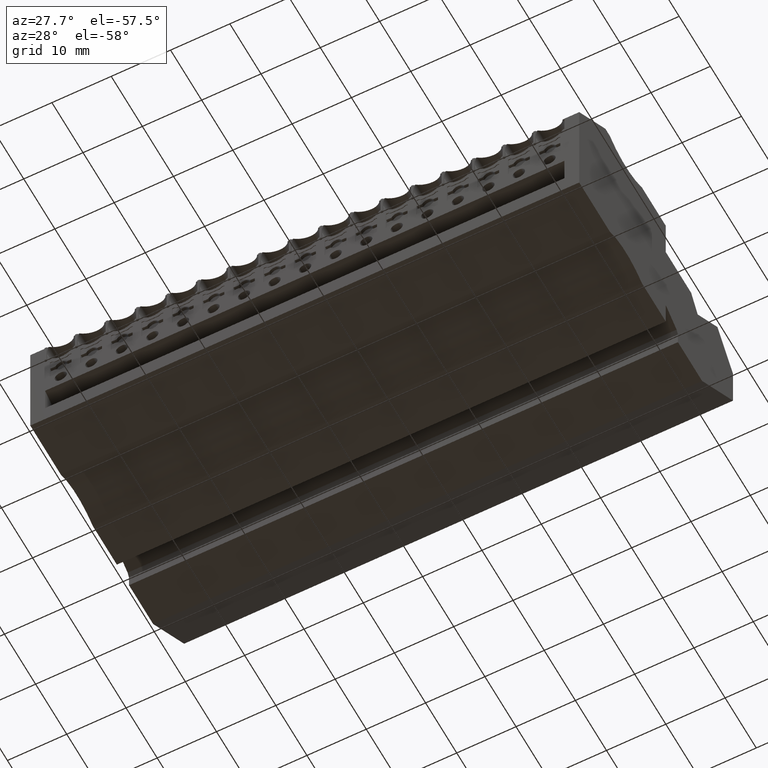
[diagram: clean part render]
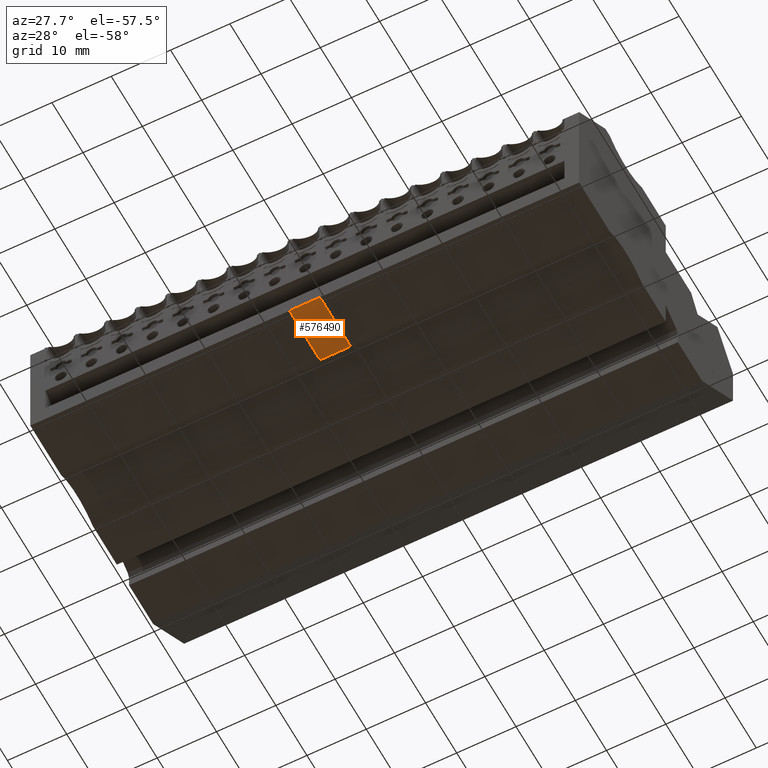
[diagram: same view with one face highlighted and labeled with its STEP entity id]
A machine part, auxiliary view. The second image highlights one B-rep face of the part: STEP entity #576490.
In plain terms, the highlighted planar face has unit normal (0, 0, -1).
Its self-contained STEP definition (entity closure, byte-faithful):
#33660=CARTESIAN_POINT('',(420.453158743445,670.93434764981,
88.7199999942416));
#33670=DIRECTION('',(1.11377720129513E-10,5.56333266435468E-10,1.));
#33680=VECTOR('',#33670,1.);
#33690=LINE('',#33660,#33680);
#182890=CARTESIAN_POINT('',(432.124069232021,670.934347625639,
68.1199999950703));
#182900=DIRECTION('',(-1.20456572490157E-9,-1.,5.82229711732946E-10));
#182910=DIRECTION('',(1.,-1.20456572494379E-9,-7.2511997674725E-11));
#182920=AXIS2_PLACEMENT_3D('',#182890,#182900,#182910);
#182930=PLANE('',#182920);
#277870=CARTESIAN_POINT('',(420.453158748791,670.934347666683,
114.470000000271));
#277880=VERTEX_POINT('',#277870);
#277990=CARTESIAN_POINT('',(430.260883772267,670.934347639395,
93.8699999926897));
#278000=DIRECTION('',(1.66699210889915E-10,4.90742846146349E-10,1.));
#278010=VECTOR('',#278000,1.);
#278020=LINE('',#277990,#278010);
#278030=CARTESIAN_POINT('',(430.260883759114,670.934347654869,
114.469999999493));
#278040=VERTEX_POINT('',#278030);
#278070=CARTESIAN_POINT('',(435.968902529176,670.934347647993,
114.469999999041));
#278080=DIRECTION('',(1.,-1.20456572494379E-9,-7.92260575924475E-11));
#278090=VECTOR('',#278080,1.);
#278100=LINE('',#278070,#278090);
#278110=EDGE_CURVE('',#277880,#278040,#278100,.T.);
#492390=CARTESIAN_POINT('',(430.26088376042,670.934347675781,
109.320000000755));
#492400=VERTEX_POINT('',#492390);
#492410=EDGE_CURVE('',#492400,#278040,#278020,.T.);
#567200=CARTESIAN_POINT('',(420.453158748383,670.934347661271,
109.320000000271));
#567210=VERTEX_POINT('',#567200);
#567220=EDGE_CURVE('',#567210,#277880,#33690,.T.);
#576380=ORIENTED_EDGE('',*,*,#567220,.F.);
#576390=ORIENTED_EDGE('',*,*,#278110,.F.);
#576400=ORIENTED_EDGE('',*,*,#492410,.T.);
#576410=CARTESIAN_POINT('',(435.968902529907,670.934347644995,
109.319999999041));
#576420=DIRECTION('',(1.,-1.20456572494379E-9,-7.92260575924475E-11));
#576430=VECTOR('',#576420,1.);
#576440=LINE('',#576410,#576430);
#576450=EDGE_CURVE('',#567210,#492400,#576440,.T.);
#576460=ORIENTED_EDGE('',*,*,#576450,.T.);
#576470=EDGE_LOOP('',(#576460,#576400,#576390,#576380));
#576480=FACE_OUTER_BOUND('',#576470,.T.);
#576490=ADVANCED_FACE('',(#576480),#182930,.T.);